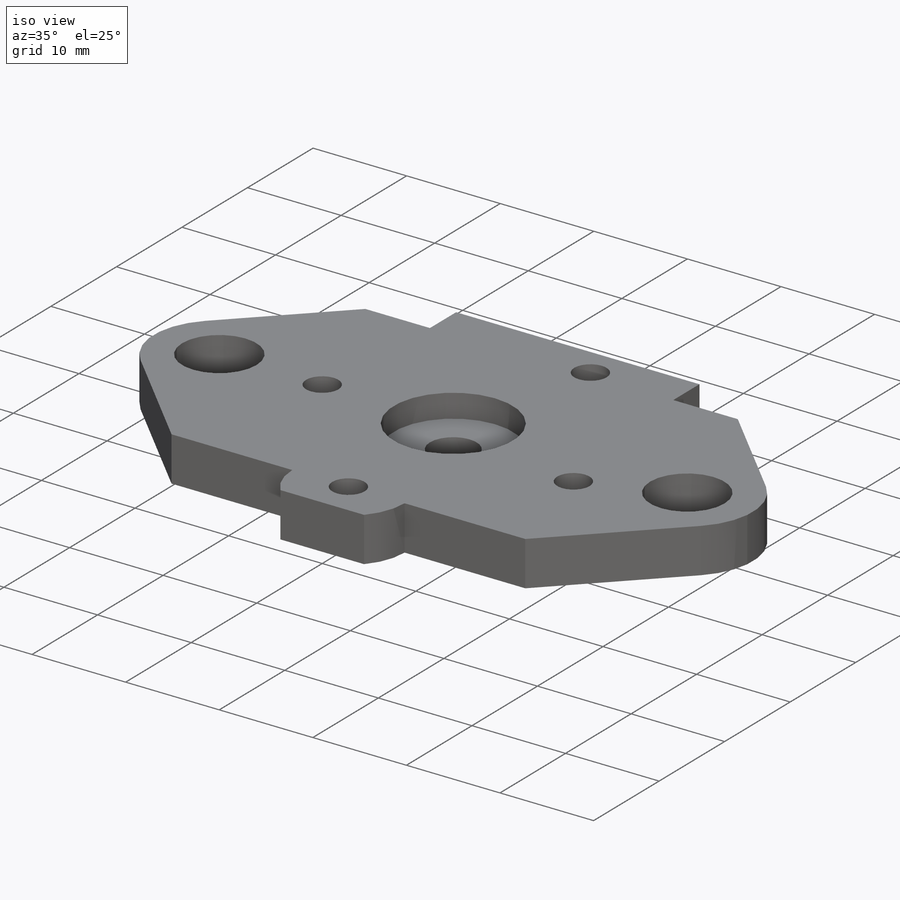
[diagram: iso view]
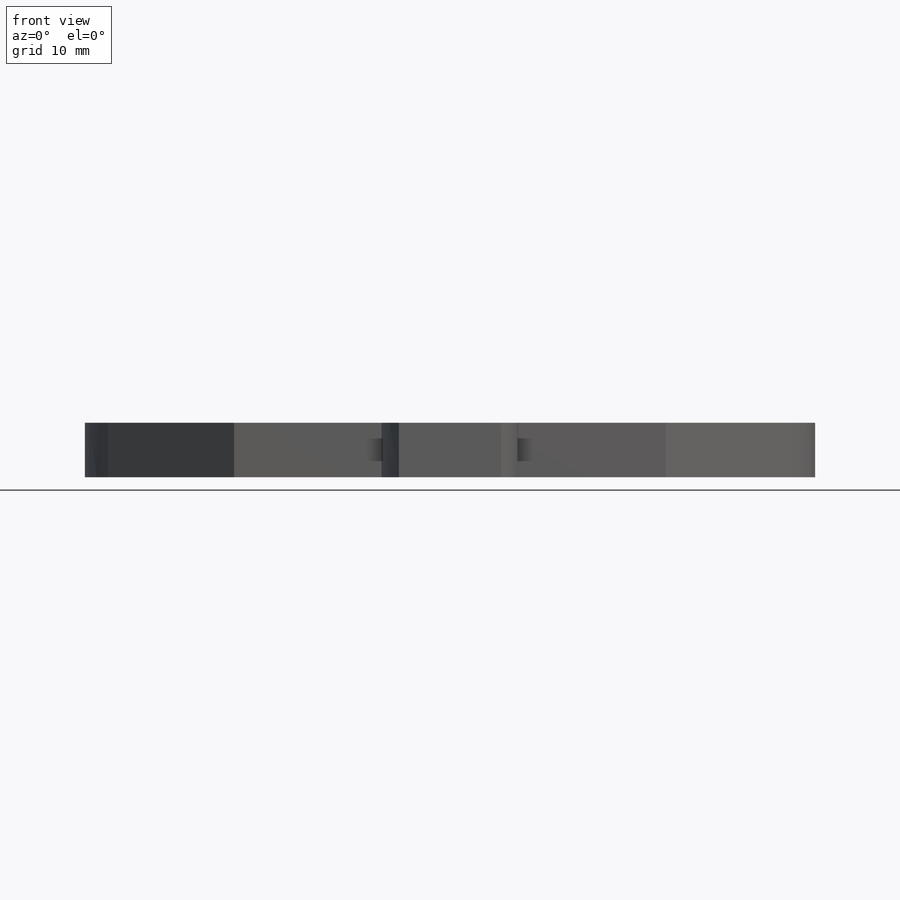
[diagram: front view]
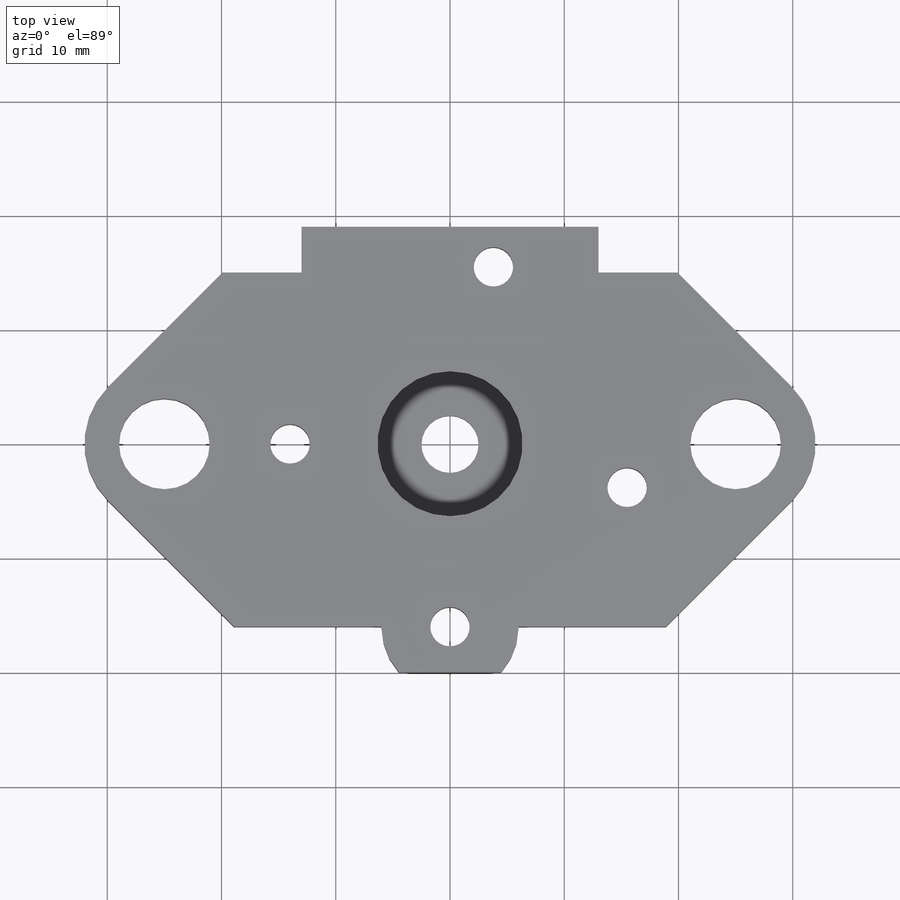
[diagram: top view]
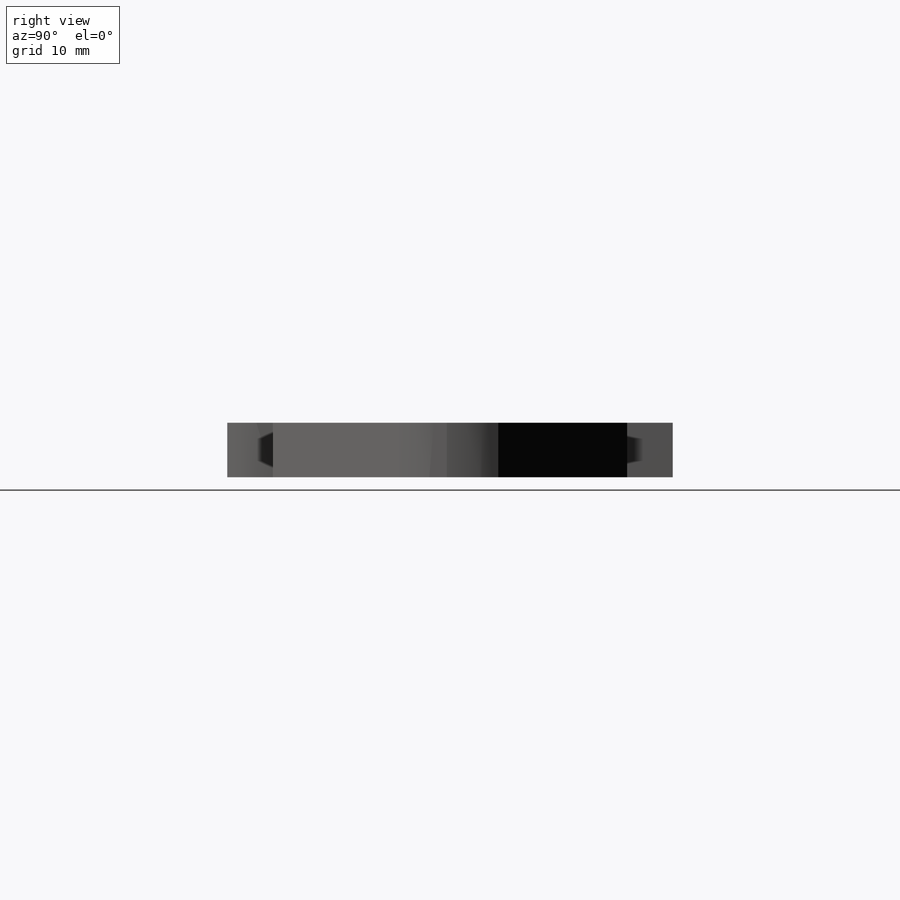
[diagram: right view]
SOLIDWORKS PART (.sldprt)
format: sldprt  version: not decoded by parser v0  size: 263,168 bytes
history: native  units: mm
features: sketch x7, cut_extrude x4, thread x4, material x1, extrude x1, hole x1, mirror x1 (+16 scaffold rows collapsed)
feature tree (35):
  scaffold x16  (default folders/planes/origin — collapsed)
  material  "6061 Alloy"
  sketch  "Sketch1"  dims[D1=45.0mm D2=65.0mm]
  extrude  "Boss-Extrude1"  Depth=4.7625mm
  sketch  "Sketch2"  dims[D1=5.0mm]
  cut_extrude  "Cut-Extrude1"  [1 undecoded]
  hole  "#8-32 Tapped Hole1"  Diameter=3.4544mm Depth=4.7625mm
  sketch  "Sketch5"  dims[c1.D1=5.0mm c1.D2=5.0mm c1.D3=5.0mm c1.D4=5.0mm c2.D1=5.0mm c2.D5=5.0mm c3.D1=3.8mm c3.D2=16.0mm c4.D1=3.8mm c4.D3=3.8mm c4.D4=16.0mm c5.D1=3.8mm c5.D5=15.5mm c5.D6=14.0mm c5.D2=15.5mm c5.D7=3.8mm]
  sketch  "Sketch4"  dims[hole-wizard template sketch: 60 standard entries collapsed; hole parameters kept: c18.Thru Tap Drill Depth=4.7625mm]
  thread  "Hole Thread1"  Diameter=4.1656mm  [1 undecoded]
  thread  "Hole Thread4"  Diameter=4.1656mm  [1 undecoded]
  thread  "Hole Thread5"  Diameter=4.1656mm  [1 undecoded]
  thread  "Hole Thread6"  Diameter=4.1656mm  [1 undecoded]
  sketch  "Sketch6"  dims[D1=7.9375mm D2=50.0mm]
  cut_extrude  "Cut-Extrude2"  [1 undecoded]
  sketch  "Sketch8"  dims[c1.D1=12.0mm c1.D2=14.0mm c1.D3=45.0mm c2.D3=45.0deg c2.D4=2.5mm c2.D5=3.5mm c2.D6=13.0mm c2.D7=15.0mm]
  cut_extrude  "Cut-Extrude3"  [1 undecoded]
  mirror  "Mirror1"
  sketch  "Sketch9"  dims[D1=12.7mm]
  cut_extrude  "Cut-Extrude4"  Depth=2.5mm
decode coverage: 14 of 18 modeling features carry decoded parameters
note: ~ marks probable driven/reference dimensions
note: 7 parameter values undecoded
summary: no parameter record found for 3 features
note: suppression state not decoded; provenance and decode notes live in map.json
